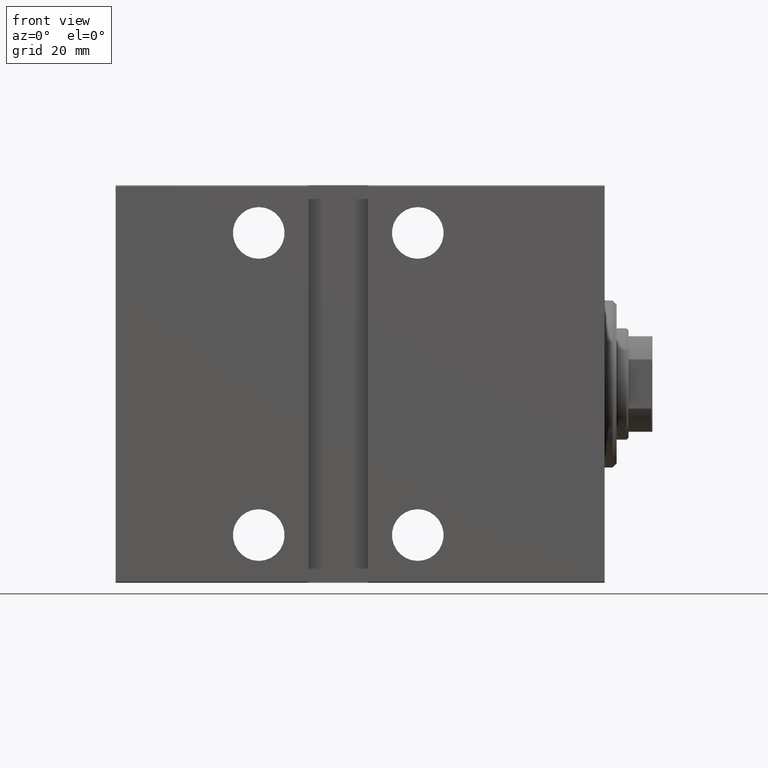
[diagram: clean part render]
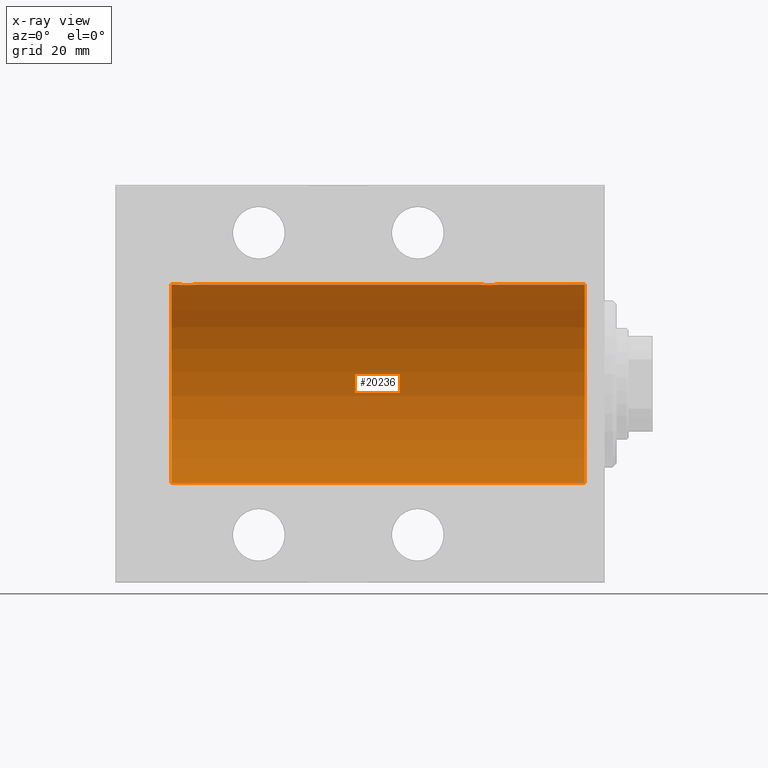
[diagram: x-ray — body ghosted, one internal face saturated and labeled with its STEP entity id]
A machine part, front view, then the same camera in x-ray: the body is ghosted and one INTERNAL B-rep face — a face not visible from any outside direction — is saturated and labeled: STEP entity #20236.
In plain terms, the highlighted cylindrical surface (partial cylindrical patch) has radius 25 mm, axis along (1, 0, -0).
Its self-contained STEP definition (entity closure, byte-faithful):
#428 = CARTESIAN_POINT ( 'NONE',  ( 107.2460637909406813, -1.109818057797417490, 24.97580694515541921 ) ) ;
#950 = CARTESIAN_POINT ( 'NONE',  ( 29.80435660916301899, -2.372734907014175665, 24.88722742718433878 ) ) ;
#984 = DIRECTION ( 'NONE',  ( -1.000000000000000000, -0.000000000000000000, -0.000000000000000000 ) ) ;
#1075 = CARTESIAN_POINT ( 'NONE',  ( 31.50000000000000000, -3.359922002512890391E-15, 25.00000000000000000 ) ) ;
#2130 = AXIS2_PLACEMENT_3D ( 'NONE', #14086, #7077, #10587 ) ;
#2637 = CARTESIAN_POINT ( 'NONE',  ( 105.8043566091630083, -2.372734907014184991, 24.88722742718433523 ) ) ;
#3276 = CARTESIAN_POINT ( 'NONE',  ( 102.5158215994234183, -0.3254210271412264488, 24.99840249400844883 ) ) ;
#3704 = CARTESIAN_POINT ( 'NONE',  ( 28.67052319885732103, -2.483544361357271857, 24.87635491893501438 ) ) ;
#3782 = EDGE_CURVE ( 'NONE', #31938, #17647, #14221, .T. ) ;
#3916 = CARTESIAN_POINT ( 'NONE',  ( 30.25084023924055998, -2.170728182476720391, 24.90574631553725027 ) ) ;
#4514 = CARTESIAN_POINT ( 'NONE',  ( 109.0000000000000000, 0.000000000000000000, 0.000000000000000000 ) ) ;
#4629 = AXIS2_PLACEMENT_3D ( 'NONE', #17257, #37159, #21203 ) ;
#5059 = VECTOR ( 'NONE', #984, 1000.000000000000000 ) ;
#5215 = CARTESIAN_POINT ( 'NONE',  ( 31.24606379094067066, -1.109818057797417046, 24.97580694515541921 ) ) ;
#6137 = CARTESIAN_POINT ( 'NONE',  ( 103.0125018416559897, -1.525407911884377965, 24.95379469572361941 ) ) ;
#6358 = CARTESIAN_POINT ( 'NONE',  ( 105.3259657003945904, -2.484007091859774086, 24.87630842367763151 ) ) ;
#6793 = CARTESIAN_POINT ( 'NONE',  ( 26.50000000000000355, -1.940558383798427991E-23, 25.00000000000000000 ) ) ;
#6953 = VECTOR ( 'NONE', #39123, 1000.000000000000000 ) ;
#6979 = CARTESIAN_POINT ( 'NONE',  ( 30.88185954148645962, -1.653834020452937814, 24.94550385189585029 ) ) ;
#7077 = DIRECTION ( 'NONE',  ( -1.000000000000000000, 0.000000000000000000, 0.000000000000000000 ) ) ;
#7898 = VERTEX_POINT ( 'NONE', #26284 ) ;
#8059 = FACE_OUTER_BOUND ( 'NONE', #32683, .T. ) ;
#8195 = ORIENTED_EDGE ( 'NONE', *, *, #36626, .F. ) ;
#9351 = CARTESIAN_POINT ( 'NONE',  ( 109.0000000000000000, 0.000000000000000000, 25.00000000000000000 ) ) ;
#10259 = CARTESIAN_POINT ( 'NONE',  ( 29.64560666148631896, -2.420689345803761050, 24.88254961038873958 ) ) ;
#10471 = ORIENTED_EDGE ( 'NONE', *, *, #15245, .T. ) ;
#10587 = DIRECTION ( 'NONE',  ( 0.000000000000000000, 0.000000000000000000, 1.000000000000000000 ) ) ;
#10706 = CARTESIAN_POINT ( 'NONE',  ( 27.74616804575498108, -2.169003991399871989, 24.90589728951138326 ) ) ;
#10919 = CARTESIAN_POINT ( 'NONE',  ( 27.34616663850662377, -1.881857718844717642, 24.92933960374833902 ) ) ;
#11081 = VECTOR ( 'NONE', #39816, 1000.000000000000000 ) ;
#12919 = CARTESIAN_POINT ( 'NONE',  ( 104.3509560983090267, -2.419770561643919127, 24.88263927071750814 ) ) ;
#13054 = VERTEX_POINT ( 'NONE', #29414 ) ;
#13340 = CARTESIAN_POINT ( 'NONE',  ( 26.57985090779070347, -0.6480119923854229524, 24.99212088949390420 ) ) ;
#13550 = CARTESIAN_POINT ( 'NONE',  ( 27.01250184165601809, -1.525407911884367085, 24.95379469572361941 ) ) ;
#14086 = CARTESIAN_POINT ( 'NONE',  ( 5.000000000000004441, 0.000000000000000000, 0.000000000000000000 ) ) ;
#14221 = LINE ( 'NONE', #20343, #11081 ) ;
#14420 = CARTESIAN_POINT ( 'NONE',  ( 107.5000000000000000, 2.971051067387116602E-15, 25.00000000000000000 ) ) ;
#14669 = EDGE_CURVE ( 'NONE', #26782, #17647, #32326, .T. ) ;
#14950 = ORIENTED_EDGE ( 'NONE', *, *, #34906, .T. ) ;
#15245 = EDGE_CURVE ( 'NONE', #31938, #40828, #17747, .T. ) ;
#15251 = LINE ( 'NONE', #9351, #27288 ) ;
#16141 = VERTEX_POINT ( 'NONE', #42812 ) ;
#16621 = CARTESIAN_POINT ( 'NONE',  ( 26.50000000000000355, -1.940558383798427991E-23, 25.00000000000000000 ) ) ;
#17257 = CARTESIAN_POINT ( 'NONE',  ( 109.0000000000000000, 0.000000000000000000, 0.000000000000000000 ) ) ;
#17264 = CARTESIAN_POINT ( 'NONE',  ( 26.50000000000000711, -0.1631750940176214526, 25.00000000000000711 ) ) ;
#17647 = VERTEX_POINT ( 'NONE', #35602 ) ;
#17747 = B_SPLINE_CURVE_WITH_KNOTS ( 'NONE', 3,
 ( #36519, #33240, #3276, #40018, #26061, #22335, #35665, #6137, #29534, #33036, #29101, #43091, #19477, #42889, #12919, #32600, #42443, #25834, #6358, #26466, #2637, #29317, #39172, #39808, #42670, #40446, #23613, #36724, #428, #20558, #27337, #14420 ),
 .UNSPECIFIED., .F., .F.,
 ( 4, 2, 2, 2, 2, 2, 2, 2, 2, 2, 2, 2, 2, 2, 2, 4 ),
 ( 0.007821024441662341453, 0.008309723826317951326, 0.008798423210973559463, 0.009287122595629169336, 0.009775821980284777474, 0.01026452136494038735, 0.01075322074959599548, 0.01124192013425160536, 0.01173061951890721349, 0.01221931890356282337, 0.01270801828821843324, 0.01319671767287404138, 0.01368541705752964951, 0.01417411644218525939, 0.01466281582684086926, 0.01564021459615210288 ),
 .UNSPECIFIED. ) ;
#18021 = LINE ( 'NONE', #37946, #5059 ) ;
#19477 = CARTESIAN_POINT ( 'NONE',  ( 103.8896320349113722, -2.245863995402913371, 24.89899750494197050 ) ) ;
#20236 = ADVANCED_FACE ( 'NONE', ( #8059 ), #21411, .F. ) ;
#20343 = CARTESIAN_POINT ( 'NONE',  ( 109.0000000000000000, 0.000000000000000000, 25.00000000000000000 ) ) ;
#20552 = CARTESIAN_POINT ( 'NONE',  ( 26.51582159942343608, -0.3254210271412225630, 24.99840249400844883 ) ) ;
#20558 = CARTESIAN_POINT ( 'NONE',  ( 107.4334935523974792, -0.6588655613945869627, 24.99312727339970053 ) ) ;
#21203 = DIRECTION ( 'NONE',  ( 0.000000000000000000, 0.000000000000000000, 1.000000000000000000 ) ) ;
#21411 = CYLINDRICAL_SURFACE ( 'NONE', #4629, 25.00000000000000000 ) ;
#22335 = CARTESIAN_POINT ( 'NONE',  ( 102.7523974898045083, -1.106703319666891838, 24.97594585958023217 ) ) ;
#22694 = DIRECTION ( 'NONE',  ( -1.000000000000000000, -0.000000000000000000, -0.000000000000000000 ) ) ;
#23396 = CARTESIAN_POINT ( 'NONE',  ( 30.65121133559112820, -1.884161199660616459, 24.92916496727982434 ) ) ;
#23445 = DIRECTION ( 'NONE',  ( -1.000000000000000000, 0.000000000000000000, 0.000000000000000000 ) ) ;
#23606 = CARTESIAN_POINT ( 'NONE',  ( 26.82988709719076681, -1.252049606094339795, 24.96900299967627390 ) ) ;
#23613 = CARTESIAN_POINT ( 'NONE',  ( 106.9853803371709375, -1.528152964861310803, 24.95362559291378091 ) ) ;
#23772 = ORIENTED_EDGE ( 'NONE', *, *, #14669, .T. ) ;
#24058 = CARTESIAN_POINT ( 'NONE',  ( 27.88963203491136156, -2.245863995402901381, 24.89899750494197050 ) ) ;
#24266 = CARTESIAN_POINT ( 'NONE',  ( 27.47463817756919369, -1.987446652080264720, 24.92104239223420592 ) ) ;
#25679 = CARTESIAN_POINT ( 'NONE',  ( 107.5000000000000000, 2.971051067387116602E-15, 25.00000000000000000 ) ) ;
#25787 = CARTESIAN_POINT ( 'NONE',  ( 109.0000000000000000, 3.061616997868383043E-15, -25.00000000000000000 ) ) ;
#25834 = CARTESIAN_POINT ( 'NONE',  ( 105.1632358963854159, -2.500125740978206057, 24.87467329022545570 ) ) ;
#26061 = CARTESIAN_POINT ( 'NONE',  ( 102.6278403059139350, -0.8058335233485532934, 24.98746277938383287 ) ) ;
#26284 = CARTESIAN_POINT ( 'NONE',  ( 5.000000000000004441, 0.000000000000000000, 25.00000000000000000 ) ) ;
#26466 = CARTESIAN_POINT ( 'NONE',  ( 105.6456066614863119, -2.420689345803769044, 24.88254961038873958 ) ) ;
#26685 = CARTESIAN_POINT ( 'NONE',  ( 30.10723845838410284, -2.247417070759897495, 24.89885693081946272 ) ) ;
#26782 = VERTEX_POINT ( 'NONE', #6793 ) ;
#26886 = CARTESIAN_POINT ( 'NONE',  ( 30.52256774340189693, -1.989585286700245037, 24.92087098724766747 ) ) ;
#27100 = CARTESIAN_POINT ( 'NONE',  ( 29.32596570039460104, -2.484007091859765204, 24.87630842367763506 ) ) ;
#27288 = VECTOR ( 'NONE', #22694, 1000.000000000000000 ) ;
#27330 = CARTESIAN_POINT ( 'NONE',  ( 28.83293504821940090, -2.499872792855082793, 24.87469871246082320 ) ) ;
#27337 = CARTESIAN_POINT ( 'NONE',  ( 107.5000000000000426, -0.3305063766663758895, 25.00000000000000355 ) ) ;
#28019 = CARTESIAN_POINT ( 'NONE',  ( 102.5000000000000000, -1.940203396391078535E-23, 25.00000000000000000 ) ) ;
#28391 = CARTESIAN_POINT ( 'NONE',  ( 31.43349355239747567, -0.6588655613945881839, 24.99312727339970053 ) ) ;
#28472 = VERTEX_POINT ( 'NONE', #30442 ) ;
#29101 = CARTESIAN_POINT ( 'NONE',  ( 103.4746381775692043, -1.987446652080271159, 24.92104239223420592 ) ) ;
#29211 = ORIENTED_EDGE ( 'NONE', *, *, #36986, .T. ) ;
#29317 = CARTESIAN_POINT ( 'NONE',  ( 106.1072384583841028, -2.247417070759907709, 24.89885693081946272 ) ) ;
#29414 = CARTESIAN_POINT ( 'NONE',  ( 109.0000000000000000, 3.061616997868383043E-15, -25.00000000000000000 ) ) ;
#29534 = CARTESIAN_POINT ( 'NONE',  ( 103.1158761721352732, -1.651251241585110163, 24.94567559498348430 ) ) ;
#29938 = CARTESIAN_POINT ( 'NONE',  ( 28.19211657594193809, -2.371528299825749198, 24.88734287464370709 ) ) ;
#30442 = CARTESIAN_POINT ( 'NONE',  ( 5.000000000000004441, 3.061616997868383043E-15, -25.00000000000000000 ) ) ;
#30589 = CARTESIAN_POINT ( 'NONE',  ( 26.75239748980449761, -1.106703319666885399, 24.97594585958023572 ) ) ;
#30817 = AXIS2_PLACEMENT_3D ( 'NONE', #4514, #23445, #32703 ) ;
#31467 = CIRCLE ( 'NONE', #2130, 25.00000000000000000 ) ;
#31938 = VERTEX_POINT ( 'NONE', #28019 ) ;
#32326 = B_SPLINE_CURVE_WITH_KNOTS ( 'NONE', 3,
 ( #16621, #17264, #20552, #13340, #40668, #30589, #23606, #13550, #40880, #10919, #24266, #10706, #24058, #29938, #36936, #3704, #27330, #33888, #27100, #10259, #950, #26685, #3916, #26886, #23396, #6979, #33670, #38685, #5215, #28391, #41956, #1075 ),
 .UNSPECIFIED., .F., .F.,
 ( 4, 2, 2, 2, 2, 2, 2, 2, 2, 2, 2, 2, 2, 2, 2, 4 ),
 ( 0.007821024441662275534, 0.008309723826317880202, 0.008798423210973486605, 0.009287122595629093008, 0.009775821980284697676, 0.01026452136494030234, 0.01075322074959590875, 0.01124192013425151515, 0.01173061951890711982, 0.01221931890356272449, 0.01270801828821833089, 0.01319671767287393729, 0.01368541705752954196, 0.01417411644218514663, 0.01466281582684075303, 0.01564021459615196410 ),
 .UNSPECIFIED. ) ;
#32453 = ORIENTED_EDGE ( 'NONE', *, *, #3782, .F. ) ;
#32600 = CARTESIAN_POINT ( 'NONE',  ( 104.6705231988572962, -2.483544361357281627, 24.87635491893501793 ) ) ;
#32683 = EDGE_LOOP ( 'NONE', ( #42279, #14950, #29211, #8195, #23772, #32453, #10471, #39784 ) ) ;
#32703 = DIRECTION ( 'NONE',  ( 0.000000000000000000, 0.000000000000000000, 1.000000000000000000 ) ) ;
#33036 = CARTESIAN_POINT ( 'NONE',  ( 103.3461666385066025, -1.881857718844725857, 24.92933960374833546 ) ) ;
#33240 = CARTESIAN_POINT ( 'NONE',  ( 102.4999999999999432, -0.1631750940176235343, 25.00000000000000355 ) ) ;
#33594 = CIRCLE ( 'NONE', #30817, 25.00000000000000000 ) ;
#33670 = CARTESIAN_POINT ( 'NONE',  ( 30.98538033717094464, -1.528152964861312801, 24.95362559291378801 ) ) ;
#33888 = CARTESIAN_POINT ( 'NONE',  ( 29.16323589638543723, -2.500125740978195843, 24.87467329022545570 ) ) ;
#34906 = EDGE_CURVE ( 'NONE', #13054, #28472, #36044, .T. ) ;
#35602 = CARTESIAN_POINT ( 'NONE',  ( 31.50000000000000000, -3.359922002512890391E-15, 25.00000000000000000 ) ) ;
#35665 = CARTESIAN_POINT ( 'NONE',  ( 102.8298870971907775, -1.252049606094350453, 24.96900299967627390 ) ) ;
#36044 = LINE ( 'NONE', #25787, #6953 ) ;
#36519 = CARTESIAN_POINT ( 'NONE',  ( 102.5000000000000000, -1.940203396391078535E-23, 25.00000000000000000 ) ) ;
#36626 = EDGE_CURVE ( 'NONE', #26782, #7898, #15251, .T. ) ;
#36724 = CARTESIAN_POINT ( 'NONE',  ( 107.1682764149395553, -1.255214705003179221, 24.96884293994577675 ) ) ;
#36936 = CARTESIAN_POINT ( 'NONE',  ( 28.35095609830903740, -2.419770561643910689, 24.88263927071751169 ) ) ;
#36986 = EDGE_CURVE ( 'NONE', #28472, #7898, #31467, .T. ) ;
#37159 = DIRECTION ( 'NONE',  ( -1.000000000000000000, -0.000000000000000000, -0.000000000000000000 ) ) ;
#37946 = CARTESIAN_POINT ( 'NONE',  ( 109.0000000000000000, 0.000000000000000000, 25.00000000000000000 ) ) ;
#38685 = CARTESIAN_POINT ( 'NONE',  ( 31.16827641493957302, -1.255214705003183440, 24.96884293994578385 ) ) ;
#39009 = EDGE_CURVE ( 'NONE', #13054, #16141, #33594, .T. ) ;
#39123 = DIRECTION ( 'NONE',  ( -1.000000000000000000, -0.000000000000000000, -0.000000000000000000 ) ) ;
#39172 = CARTESIAN_POINT ( 'NONE',  ( 106.2508402392405458, -2.170728182476731938, 24.90574631553725027 ) ) ;
#39784 = ORIENTED_EDGE ( 'NONE', *, *, #43204, .F. ) ;
#39808 = CARTESIAN_POINT ( 'NONE',  ( 106.5225677434019502, -1.989585286700258138, 24.92087098724766747 ) ) ;
#39816 = DIRECTION ( 'NONE',  ( -1.000000000000000000, -0.000000000000000000, -0.000000000000000000 ) ) ;
#40018 = CARTESIAN_POINT ( 'NONE',  ( 102.5798509077906999, -0.6480119923854288366, 24.99212088949390775 ) ) ;
#40446 = CARTESIAN_POINT ( 'NONE',  ( 106.8818595414864632, -1.653834020452947362, 24.94550385189584318 ) ) ;
#40668 = CARTESIAN_POINT ( 'NONE',  ( 26.62784030591392792, -0.8058335233485480753, 24.98746277938383287 ) ) ;
#40828 = VERTEX_POINT ( 'NONE', #25679 ) ;
#40880 = CARTESIAN_POINT ( 'NONE',  ( 27.11587617213528745, -1.651251241585102836, 24.94567559498349141 ) ) ;
#41956 = CARTESIAN_POINT ( 'NONE',  ( 31.49999999999998579, -0.3305063766663721148, 25.00000000000000000 ) ) ;
#42279 = ORIENTED_EDGE ( 'NONE', *, *, #39009, .F. ) ;
#42443 = CARTESIAN_POINT ( 'NONE',  ( 104.8329350482193973, -2.499872792855093451, 24.87469871246082320 ) ) ;
#42670 = CARTESIAN_POINT ( 'NONE',  ( 106.6512113355911566, -1.884161199660627561, 24.92916496727982789 ) ) ;
#42812 = CARTESIAN_POINT ( 'NONE',  ( 109.0000000000000000, 0.000000000000000000, 25.00000000000000000 ) ) ;
#42889 = CARTESIAN_POINT ( 'NONE',  ( 104.1921165759419381, -2.371528299825759856, 24.88734287464370709 ) ) ;
#43091 = CARTESIAN_POINT ( 'NONE',  ( 103.7461680457549846, -2.169003991399879983, 24.90589728951138326 ) ) ;
#43204 = EDGE_CURVE ( 'NONE', #16141, #40828, #18021, .T. ) ;